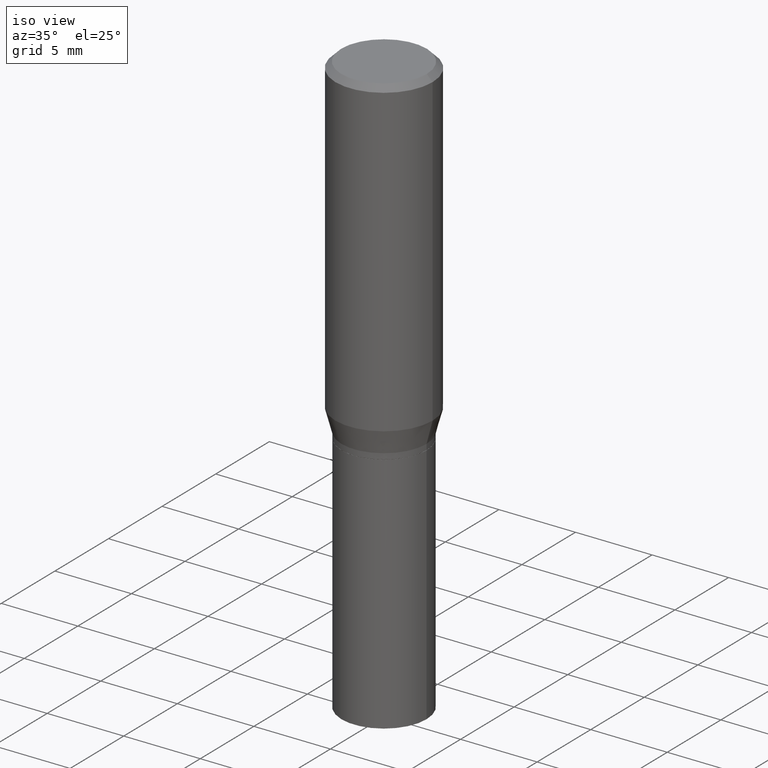
[diagram: clean part render]
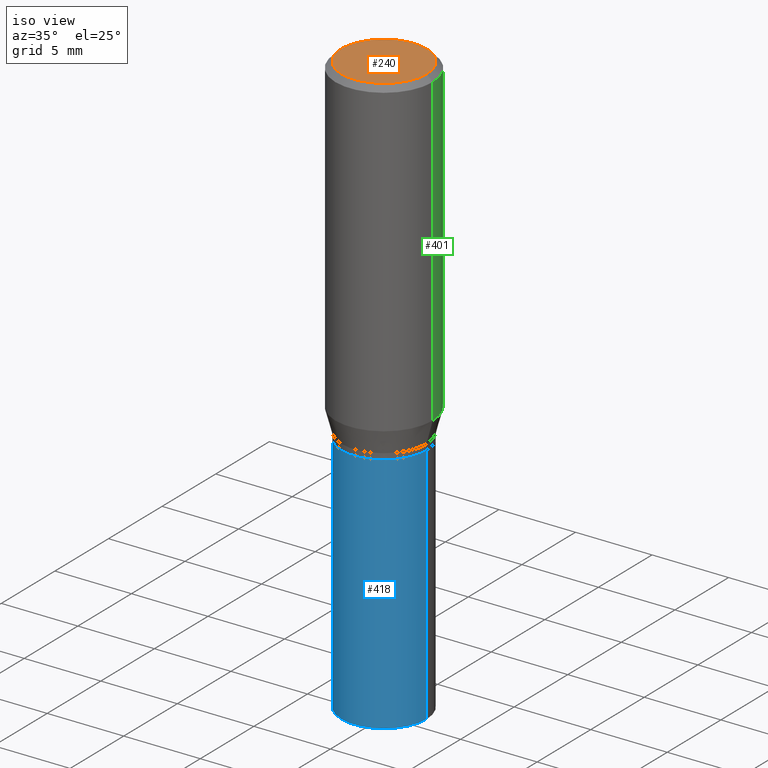
[diagram: same view with three faces highlighted in distinct colors, each labeled with its STEP entity id]
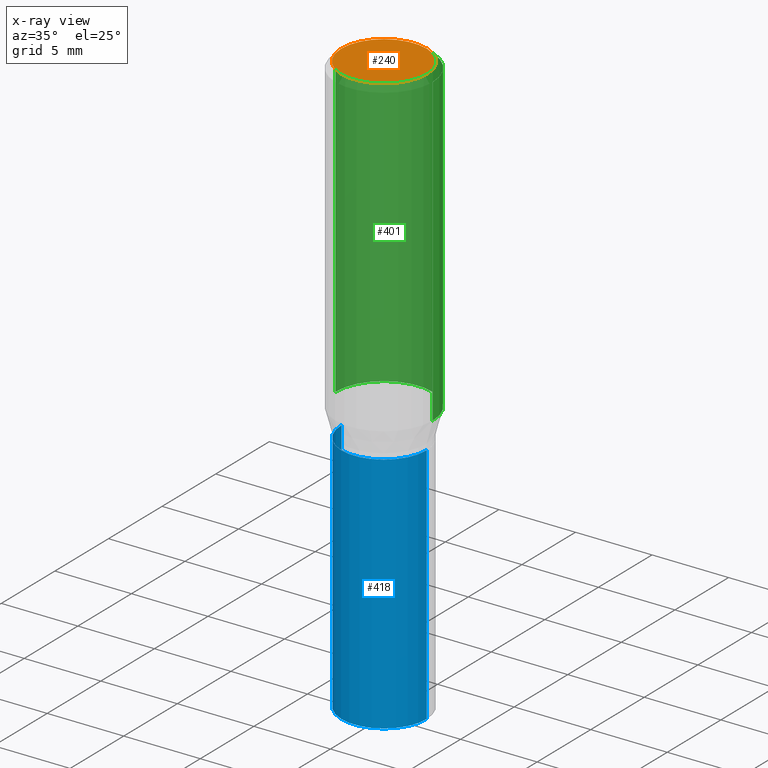
[diagram: x-ray of the same camera — body ghosted, the three highlighted faces saturated]
A machine part, iso view with three faces highlighted in distinct colors.
The next image is the same camera in x-ray (body ghosted, the three faces saturated) — at least one of them is partly hidden behind the body in this view.
Their STEP definitions:

[orange] entity #240 — the highlighted planar face has unit normal (0, -0, -1).
#7 = VERTEX_POINT ( 'NONE', #215 ) ;
#31 = DIRECTION ( 'NONE',  ( 1.000000000000000000, -6.982962677686266711E-15, 4.876001053725558154E-29 ) ) ;
#61 = AXIS2_PLACEMENT_3D ( 'NONE', #313, #392, #31 ) ;
#73 = EDGE_LOOP ( 'NONE', ( #442, #260 ) ) ;
#77 = CARTESIAN_POINT ( 'NONE',  ( 7.681258945454893776E-16, 0.1100000000000000006, -3.879001556016067477E-16 ) ) ;
#146 = FACE_OUTER_BOUND ( 'NONE', #73, .T. ) ;
#161 = DIRECTION ( 'NONE',  ( -2.445468806185136597E-29, 3.491481338843145583E-15, 1.000000000000000000 ) ) ;
#162 = EDGE_CURVE ( 'NONE', #445, #7, #201, .T. ) ;
#201 = CIRCLE ( 'NONE', #366, 0.1100000000000000006 ) ;
#215 = CARTESIAN_POINT ( 'NONE',  ( -0.1100000000000000006, 7.943120045868128186E-16, -7.674416657726847932E-18 ) ) ;
#240 = ADVANCED_FACE ( 'NONE', ( #146 ), #251, .F. ) ;
#243 = CARTESIAN_POINT ( 'NONE',  ( 0.1100000000000000006, -8.322946247794786836E-16, -7.674416657715788472E-18 ) ) ;
#251 = PLANE ( 'NONE',  #372 ) ;
#260 = ORIENTED_EDGE ( 'NONE', *, *, #162, .T. ) ;
#276 = CIRCLE ( 'NONE', #61, 0.1100000000000000006 ) ;
#308 = CARTESIAN_POINT ( 'NONE',  ( 1.876754654212523840E-46, -2.679508254694119990E-32, -7.674416657721384454E-18 ) ) ;
#313 = CARTESIAN_POINT ( 'NONE',  ( 1.876754654212523840E-46, -2.679508254694119990E-32, -7.674416657721384454E-18 ) ) ;
#324 = EDGE_CURVE ( 'NONE', #7, #445, #276, .T. ) ;
#338 = DIRECTION ( 'NONE',  ( 1.000000000000000000, -6.982962677686266711E-15, 4.876001053725558154E-29 ) ) ;
#357 = DIRECTION ( 'NONE',  ( 2.438088387897960049E-29, -3.491481338843145188E-15, -1.000000000000000000 ) ) ;
#366 = AXIS2_PLACEMENT_3D ( 'NONE', #308, #161, #338 ) ;
#372 = AXIS2_PLACEMENT_3D ( 'NONE', #77, #357, #463 ) ;
#392 = DIRECTION ( 'NONE',  ( -2.445468806185136597E-29, 3.491481338843145583E-15, 1.000000000000000000 ) ) ;
#442 = ORIENTED_EDGE ( 'NONE', *, *, #324, .T. ) ;
#445 = VERTEX_POINT ( 'NONE', #243 ) ;
#463 = DIRECTION ( 'NONE',  ( -1.000000000000000000, 6.982962677686265922E-15, -4.876176775795935793E-29 ) ) ;

[blue] entity #418 — the highlighted cylindrical surface (partial cylindrical patch) has radius 2.7788 mm, axis along (-0, 0, 1).
#5 = DIRECTION ( 'NONE',  ( 1.000000000000000000, -6.982962677686269866E-15, 0.000000000000000000 ) ) ;
#19 = VECTOR ( 'NONE', #374, 39.37007874015748143 ) ;
#25 = EDGE_LOOP ( 'NONE', ( #204, #160, #343, #280 ) ) ;
#42 = AXIS2_PLACEMENT_3D ( 'NONE', #328, #120, #5 ) ;
#49 = VERTEX_POINT ( 'NONE', #179 ) ;
#56 = LINE ( 'NONE', #335, #433 ) ;
#64 = CARTESIAN_POINT ( 'NONE',  ( 0.1093999999999999972, -3.818982288426630302E-15, -0.8750000000000001110 ) ) ;
#85 = EDGE_CURVE ( 'NONE', #49, #122, #268, .T. ) ;
#108 = FACE_OUTER_BOUND ( 'NONE', #25, .T. ) ;
#120 = DIRECTION ( 'NONE',  ( -2.445468806185136597E-29, 3.491481338843145583E-15, 1.000000000000000000 ) ) ;
#121 = DIRECTION ( 'NONE',  ( -2.445468806185136877E-29, 3.491481338843145188E-15, 1.000000000000000000 ) ) ;
#122 = VERTEX_POINT ( 'NONE', #271 ) ;
#128 = LINE ( 'NONE', #266, #19 ) ;
#134 = DIRECTION ( 'NONE',  ( 1.000000000000000000, -6.982962677686269866E-15, 0.000000000000000000 ) ) ;
#135 = VERTEX_POINT ( 'NONE', #444 ) ;
#138 = VERTEX_POINT ( 'NONE', #64 ) ;
#160 = ORIENTED_EDGE ( 'NONE', *, *, #85, .T. ) ;
#163 = CIRCLE ( 'NONE', #360, 0.1093999999999999972 ) ;
#179 = CARTESIAN_POINT ( 'NONE',  ( -0.1093999999999999972, -3.368800336954685870E-15, -1.500000000000000222 ) ) ;
#204 = ORIENTED_EDGE ( 'NONE', *, *, #205, .F. ) ;
#205 = EDGE_CURVE ( 'NONE', #49, #135, #128, .T. ) ;
#208 = EDGE_CURVE ( 'NONE', #122, #138, #56, .T. ) ;
#209 = DIRECTION ( 'NONE',  ( -2.445468806185136597E-29, 3.491481338843145583E-15, 1.000000000000000000 ) ) ;
#219 = DIRECTION ( 'NONE',  ( -2.445468806185136597E-29, 3.491481338843145583E-15, 1.000000000000000000 ) ) ;
#266 = CARTESIAN_POINT ( 'NONE',  ( -0.1093999999999999972, 7.773337529215495838E-16, -5.381314988738867416E-30 ) ) ;
#268 = CIRCLE ( 'NONE', #42, 0.1093999999999999972 ) ;
#271 = CARTESIAN_POINT ( 'NONE',  ( 0.1093999999999999972, -6.001158125203596537E-15, -1.500000000000000222 ) ) ;
#280 = ORIENTED_EDGE ( 'NONE', *, *, #290, .F. ) ;
#289 = CYLINDRICAL_SURFACE ( 'NONE', #443, 0.1093999999999999972 ) ;
#290 = EDGE_CURVE ( 'NONE', #135, #138, #163, .T. ) ;
#328 = CARTESIAN_POINT ( 'NONE',  ( 3.668203209277704895E-29, -5.237222008264718177E-15, -1.500000000000000222 ) ) ;
#335 = CARTESIAN_POINT ( 'NONE',  ( 0.1093999999999999972, -7.639361169388775718E-16, 5.334537392720753909E-30 ) ) ;
#343 = ORIENTED_EDGE ( 'NONE', *, *, #208, .T. ) ;
#359 = DIRECTION ( 'NONE',  ( 1.000000000000000000, -6.982962677686266711E-15, 4.876176775795935793E-29 ) ) ;
#360 = AXIS2_PLACEMENT_3D ( 'NONE', #447, #209, #134 ) ;
#374 = DIRECTION ( 'NONE',  ( -2.445468806185136877E-29, 3.491481338843145188E-15, 1.000000000000000000 ) ) ;
#418 = ADVANCED_FACE ( 'NONE', ( #108 ), #289, .T. ) ;
#427 = CARTESIAN_POINT ( 'NONE',  ( 0.000000000000000000, 0.000000000000000000, 0.000000000000000000 ) ) ;
#433 = VECTOR ( 'NONE', #121, 39.37007874015748143 ) ;
#443 = AXIS2_PLACEMENT_3D ( 'NONE', #427, #219, #359 ) ;
#444 = CARTESIAN_POINT ( 'NONE',  ( -0.1093999999999999972, -3.368800336954685870E-15, -0.8750000000000001110 ) ) ;
#447 = CARTESIAN_POINT ( 'NONE',  ( 2.139785205411994522E-29, -3.055046171487752730E-15, -0.8750000000000001110 ) ) ;

[green] entity #401 — the highlighted cylindrical surface (partial cylindrical patch) has radius 3.175 mm, axis along (-0, 0, 1).
#15 = EDGE_CURVE ( 'NONE', #123, #412, #312, .T. ) ;
#16 = EDGE_CURVE ( 'NONE', #287, #412, #378, .T. ) ;
#35 = DIRECTION ( 'NONE',  ( 1.000000000000000000, -6.982962677686266711E-15, 0.000000000000000000 ) ) ;
#40 = DIRECTION ( 'NONE',  ( 1.000000000000000000, -6.982962677686266711E-15, 0.000000000000000000 ) ) ;
#58 = ORIENTED_EDGE ( 'NONE', *, *, #15, .T. ) ;
#67 = AXIS2_PLACEMENT_3D ( 'NONE', #184, #111, #35 ) ;
#91 = ORIENTED_EDGE ( 'NONE', *, *, #320, .T. ) ;
#110 = ORIENTED_EDGE ( 'NONE', *, *, #16, .F. ) ;
#111 = DIRECTION ( 'NONE',  ( -2.445468806185136597E-29, 3.491481338843145583E-15, 1.000000000000000000 ) ) ;
#123 = VERTEX_POINT ( 'NONE', #382 ) ;
#136 = VECTOR ( 'NONE', #358, 39.37007874015748143 ) ;
#141 = CARTESIAN_POINT ( 'NONE',  ( 0.000000000000000000, 0.000000000000000000, 0.000000000000000000 ) ) ;
#166 = FACE_OUTER_BOUND ( 'NONE', #224, .T. ) ;
#171 = DIRECTION ( 'NONE',  ( -2.445468806185136597E-29, 3.491481338843145583E-15, 1.000000000000000000 ) ) ;
#183 = DIRECTION ( 'NONE',  ( -2.445468806185136877E-29, 3.491481338843145188E-15, 1.000000000000000000 ) ) ;
#184 = CARTESIAN_POINT ( 'NONE',  ( 1.960727997524297343E-29, -2.799399933701342964E-15, -0.8017800074019257872 ) ) ;
#210 = CIRCLE ( 'NONE', #67, 0.1250000000000000000 ) ;
#221 = LINE ( 'NONE', #364, #404 ) ;
#224 = EDGE_LOOP ( 'NONE', ( #91, #58, #110, #255 ) ) ;
#226 = AXIS2_PLACEMENT_3D ( 'NONE', #141, #254, #284 ) ;
#254 = DIRECTION ( 'NONE',  ( -2.445468806185136597E-29, 3.491481338843145583E-15, 1.000000000000000000 ) ) ;
#255 = ORIENTED_EDGE ( 'NONE', *, *, #465, .F. ) ;
#284 = DIRECTION ( 'NONE',  ( 1.000000000000000000, -6.982962677686266711E-15, 4.876176775795935793E-29 ) ) ;
#287 = VERTEX_POINT ( 'NONE', #385 ) ;
#312 = LINE ( 'NONE', #421, #136 ) ;
#315 = VERTEX_POINT ( 'NONE', #395 ) ;
#319 = CARTESIAN_POINT ( 'NONE',  ( -0.1250000000000000000, -5.377076571918697891E-16, -0.01499999999999999944 ) ) ;
#320 = EDGE_CURVE ( 'NONE', #315, #123, #210, .T. ) ;
#354 = CARTESIAN_POINT ( 'NONE',  ( 3.668203209277705088E-31, -5.237222008264718399E-17, -0.01499999999999999944 ) ) ;
#358 = DIRECTION ( 'NONE',  ( -2.445468806185136877E-29, 3.491481338843145188E-15, 1.000000000000000000 ) ) ;
#364 = CARTESIAN_POINT ( 'NONE',  ( 0.1250000000000000000, -8.728703347107833388E-16, 6.095220969744919741E-30 ) ) ;
#378 = CIRCLE ( 'NONE', #399, 0.1250000000000000000 ) ;
#382 = CARTESIAN_POINT ( 'NONE',  ( -0.1250000000000000000, -1.911221514001217731E-15, -0.8017800074019257872 ) ) ;
#385 = CARTESIAN_POINT ( 'NONE',  ( 0.1250000000000000000, -9.252425547934304180E-16, -0.01499999999999999944 ) ) ;
#395 = CARTESIAN_POINT ( 'NONE',  ( 0.1250000000000000000, -3.672270268412127091E-15, -0.8017800074019257872 ) ) ;
#399 = AXIS2_PLACEMENT_3D ( 'NONE', #354, #171, #40 ) ;
#401 = ADVANCED_FACE ( 'NONE', ( #166 ), #423, .T. ) ;
#404 = VECTOR ( 'NONE', #183, 39.37007874015748143 ) ;
#412 = VERTEX_POINT ( 'NONE', #319 ) ;
#421 = CARTESIAN_POINT ( 'NONE',  ( -0.1250000000000000000, 8.881784197001252323E-16, -6.148668862818632227E-30 ) ) ;
#423 = CYLINDRICAL_SURFACE ( 'NONE', #226, 0.1250000000000000000 ) ;
#465 = EDGE_CURVE ( 'NONE', #315, #287, #221, .T. ) ;